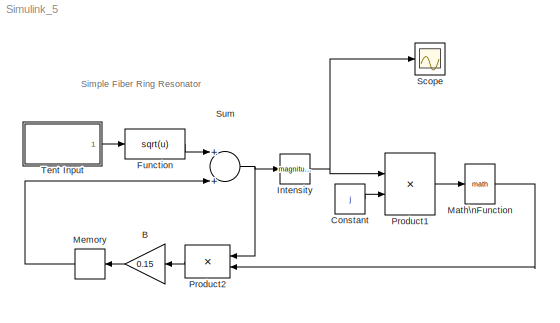
MODEL Simulink_5
KIND model
BLOCK [Gain] B
  Gain = 0.15
  SID = 1
BLOCK [Constant] Constant
  SID = 2
  Value = j
BLOCK [Fcn] Function
  Expr = sqrt(u)
  SID = 3
BLOCK [Math] Intensity
  Operator = magnitude^2
  Ports = [1, 1]
  SID = 4
BLOCK [Math] Math\nFunction
  Ports = [1, 1]
  SID = 5
BLOCK [Memory] Memory
  SID = 6
BLOCK [Product] Product1
  Ports = [2, 1]
  RndMeth = Floor
  SID = 7
BLOCK [Product] Product2
  Ports = [2, 1]
  RndMeth = Floor
  SID = 8
BLOCK [Scope] Scope
  Floating = off
  NumInputPorts = 1
  Ports = [1]
  SID = 9
  ScopeSpecificationString = C++SS(StrPVP('Location','[5, 53, 1029, 743]'),StrPVP('Open','off'),MxPVP('AxesTitles',54,'struct(''axes1'',''%<SignalLabel>'')'),StrPVP('DataFormat','StructureWithTime'),StrPVP('LimitDataPoints','on'),StrPVP('Decimation','1'),StrPVP('BlockParamSampleInput','off'))
BLOCK [Sum] Sum
  Ports = [2, 1]
  SID = 10
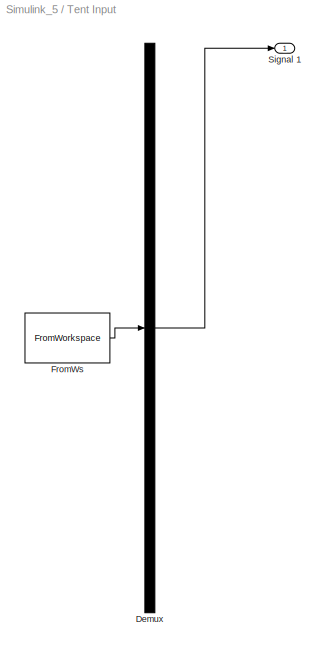
BLOCK [SubSystem] Tent Input
  ClipboardFcn = sigbuilder_block('clipboard');
  CloseFcn = sigbuilder_block('close');
  CopyFcn = sigbuilder_block('copy');
  DeleteFcn = sigbuilder_block('delete');
  LoadFcn = sigbuilder_block('load');
  ModelCloseFcn = sigbuilder_block('modelClose');
  NameChangeFcn = sigbuilder_block('namechange');
  OpenFcn = sigbuilder_block('open',[50 50 520 400 ]);
  Ports = [0, 1]
  PreSaveFcn = sigbuilder_block('preSave');
  RequestExecContextInheritance = off
  SID = 11
  StartFcn = sigbuilder_block('start');
  StopFcn = sigbuilder_block('stop');
  Tag = STV Subsys
BLOCK [Demux] Tent Input/Demux
  Outputs = 1
  Ports = [1, 1]
  SID = 12
  Tag = STV Demux
BLOCK [FromWorkspace] Tent Input/FromWs
  SID = 13
  SampleTime = 0
  SigBuilderData = DataTag0
  Tag = STV FromWs
  VariableName = tuvar
BLOCK [Outport] Tent Input/Signal 1
  IconDisplay = Port number
  SID = 14
  Tag = STV Outport
ANNOTATION (root): Simple Fiber Ring Resonator
LINE B:1 -> Memory:1
LINE Constant:1 -> Product1:2
LINE Function:1 -> Sum:1
NET Intensity:1 -> Product1:1, Scope:1
LINE Math\nFunction:1 -> Product2:2
LINE Memory:1 -> Sum:2
LINE Product1:1 -> Math\nFunction:1
LINE Product2:1 -> B:1
NET Sum:1 -> Intensity:1, Product2:1
LINE Tent Input/Demux:1 -> Tent Input/Signal 1:1
LINE Tent Input/FromWs:1 -> Tent Input/Demux:1
LINE Tent Input:1 -> Function:1
note: NET lines group one-source signal fan-out (src -> all destinations, sorted); 1:1 wires keep LINE
